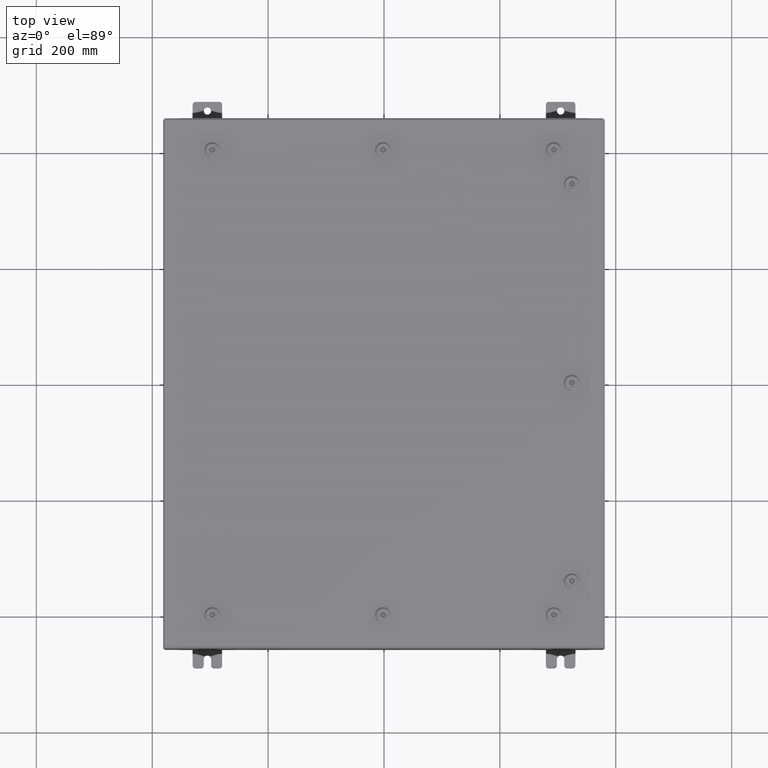
[diagram: clean part render]
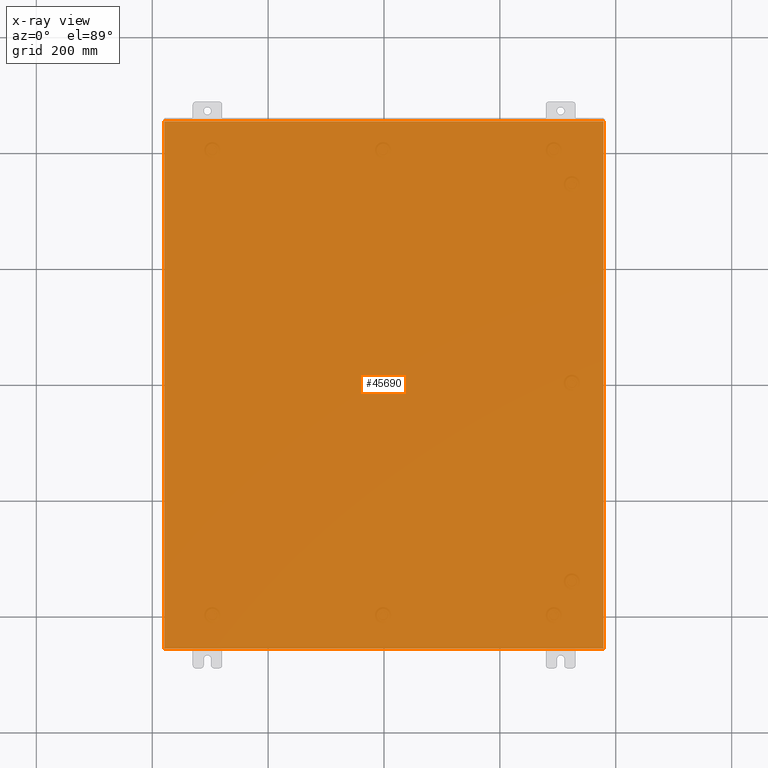
[diagram: x-ray — body ghosted, one internal face saturated and labeled with its STEP entity id]
A machine part, top view, then the same camera in x-ray: the body is ghosted and one INTERNAL B-rep face — a face not visible from any outside direction — is saturated and labeled: STEP entity #45690.
In plain terms, the highlighted planar face has unit normal (0, 0, -1).
Its self-contained STEP definition (entity closure, byte-faithful):
#304 = LINE ( 'NONE', #35190, #3491 ) ;
#1938 = EDGE_CURVE ( 'NONE', #12615, #3091, #304, .T. ) ;
#2186 = VERTEX_POINT ( 'NONE', #16743 ) ;
#2585 = VERTEX_POINT ( 'NONE', #23776 ) ;
#3091 = VERTEX_POINT ( 'NONE', #26887 ) ;
#3277 = DIRECTION ( 'NONE',  ( -1.000000000000000000, -0.0000000000000000000, -0.0000000000000000000 ) ) ;
#3487 = DIRECTION ( 'NONE',  ( -1.000000000000000000, 0.0000000000000000000, -0.0000000000000000000 ) ) ;
#3491 = VECTOR ( 'NONE', #64494, 39.37007874015748100 ) ;
#4754 = DIRECTION ( 'NONE',  ( -0.0000000000000000000, 1.000000000000000000, -0.0000000000000000000 ) ) ;
#8949 = ORIENTED_EDGE ( 'NONE', *, *, #34858, .T. ) ;
#11091 = VECTOR ( 'NONE', #39317, 39.37007874015748100 ) ;
#12615 = VERTEX_POINT ( 'NONE', #22409 ) ;
#13254 = AXIS2_PLACEMENT_3D ( 'NONE', #64410, #33907, #3487 ) ;
#16743 = CARTESIAN_POINT ( 'NONE',  ( -14.91230000000000200, 17.92530000000000000, 4.481938114605432000E-017 ) ) ;
#17922 = VECTOR ( 'NONE', #4754, 39.37007874015748100 ) ;
#22409 = CARTESIAN_POINT ( 'NONE',  ( -14.91230000000000200, -17.92530000000000000, 4.481938114605432000E-017 ) ) ;
#22965 = FACE_OUTER_BOUND ( 'NONE', #54195, .T. ) ;
#23776 = CARTESIAN_POINT ( 'NONE',  ( 14.91229999999999800, 17.92530000000000000, -2.518422369159242700E-015 ) ) ;
#25156 = EDGE_CURVE ( 'NONE', #2585, #3091, #50109, .T. ) ;
#26887 = CARTESIAN_POINT ( 'NONE',  ( 14.91229999999999800, -17.92530000000000000, 4.247169927649909300E-016 ) ) ;
#27274 = ORIENTED_EDGE ( 'NONE', *, *, #37895, .F. ) ;
#28578 = PLANE ( 'NONE',  #13254 ) ;
#33907 = DIRECTION ( 'NONE',  ( 0.0000000000000000000, 0.0000000000000000000, -1.000000000000000000 ) ) ;
#34858 = EDGE_CURVE ( 'NONE', #2585, #2186, #53897, .T. ) ;
#35175 = CARTESIAN_POINT ( 'NONE',  ( -14.91230000000000200, -17.92530000000000000, 4.481938114605432000E-017 ) ) ;
#35190 = CARTESIAN_POINT ( 'NONE',  ( -15.00000000000000400, -17.92530000000000000, 0.0000000000000000000 ) ) ;
#37895 = EDGE_CURVE ( 'NONE', #12615, #2186, #43412, .T. ) ;
#39317 = DIRECTION ( 'NONE',  ( -0.0000000000000000000, -1.000000000000000000, 8.208677865577646300E-017 ) ) ;
#43412 = LINE ( 'NONE', #35175, #17922 ) ;
#43999 = CARTESIAN_POINT ( 'NONE',  ( -15.00000000000000400, 17.92530000000000000, 0.0000000000000000000 ) ) ;
#45690 = ADVANCED_FACE ( 'NONE', ( #22965 ), #28578, .F. ) ;
#50109 = LINE ( 'NONE', #59636, #11091 ) ;
#51266 = ORIENTED_EDGE ( 'NONE', *, *, #1938, .T. ) ;
#52308 = VECTOR ( 'NONE', #3277, 39.37007874015748100 ) ;
#53897 = LINE ( 'NONE', #43999, #52308 ) ;
#54195 = EDGE_LOOP ( 'NONE', ( #27274, #51266, #61641, #8949 ) ) ;
#59636 = CARTESIAN_POINT ( 'NONE',  ( 14.91229999999999800, 17.92530000000000000, -2.518422369159242700E-015 ) ) ;
#61641 = ORIENTED_EDGE ( 'NONE', *, *, #25156, .F. ) ;
#64410 = CARTESIAN_POINT ( 'NONE',  ( 0.0000000000000000000, 0.0000000000000000000, 0.0000000000000000000 ) ) ;
#64494 = DIRECTION ( 'NONE',  ( 1.000000000000000000, 0.0000000000000000000, 0.0000000000000000000 ) ) ;